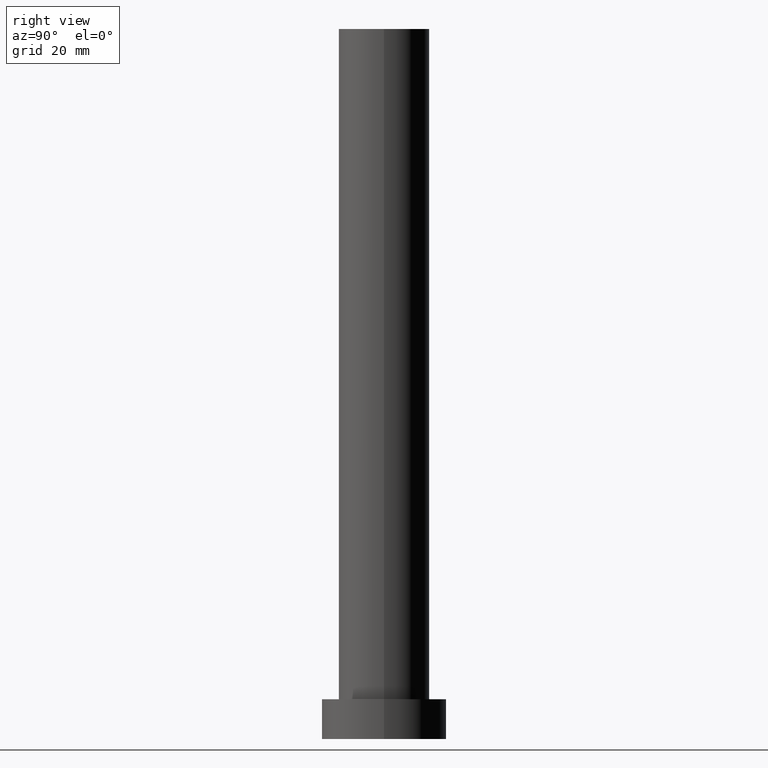
[diagram: clean part render]
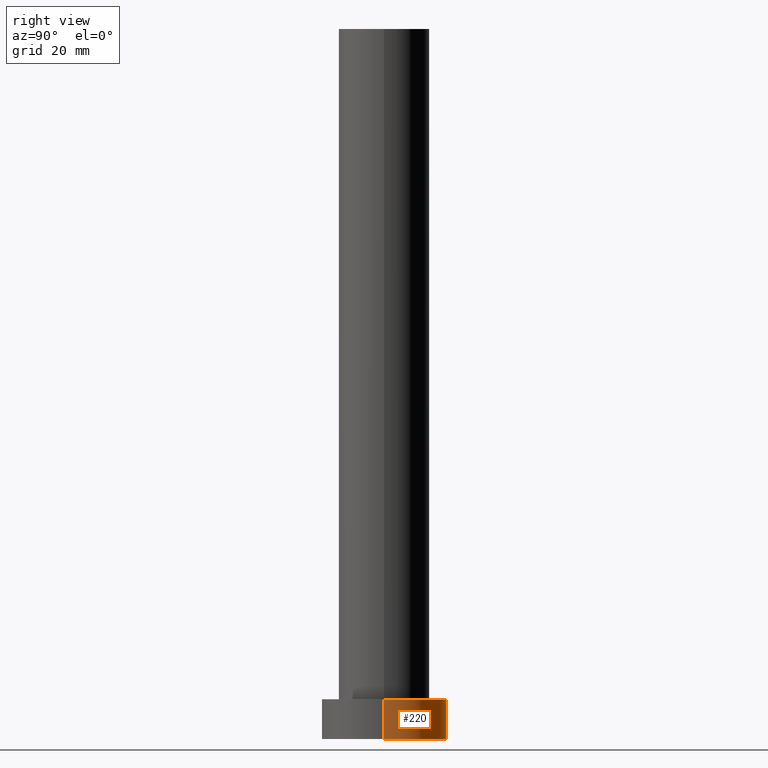
[diagram: same view with one face highlighted and labeled with its STEP entity id]
A machine part, right view. The second image highlights one B-rep face of the part: STEP entity #220.
In plain terms, the highlighted cylindrical surface (partial cylindrical patch) has radius 11 mm, axis along (-0, -0, -1).
Its self-contained STEP definition (entity closure, byte-faithful):
#1 = CARTESIAN_POINT ( 'NONE',  ( 0.000000000000000000, 0.000000000000000000, 0.000000000000000000 ) ) ;
#2 = VERTEX_POINT ( 'NONE', #116 ) ;
#4 = EDGE_CURVE ( 'NONE', #165, #127, #247, .T. ) ;
#7 = DIRECTION ( 'NONE',  ( -0.000000000000000000, -0.000000000000000000, -1.000000000000000000 ) ) ;
#13 = DIRECTION ( 'NONE',  ( 0.000000000000000000, 0.000000000000000000, 1.000000000000000000 ) ) ;
#24 = EDGE_CURVE ( 'NONE', #165, #2, #95, .T. ) ;
#41 = AXIS2_PLACEMENT_3D ( 'NONE', #71, #68, #134 ) ;
#42 = CARTESIAN_POINT ( 'NONE',  ( 11.00000000000000000, 1.347111479062088405E-15, 7.000000000000000000 ) ) ;
#46 = ORIENTED_EDGE ( 'NONE', *, *, #4, .T. ) ;
#48 = VECTOR ( 'NONE', #7, 1000.000000000000000 ) ;
#52 = DIRECTION ( 'NONE',  ( 1.000000000000000000, 0.000000000000000000, 0.000000000000000000 ) ) ;
#60 = DIRECTION ( 'NONE',  ( 0.000000000000000000, 0.000000000000000000, 1.000000000000000000 ) ) ;
#68 = DIRECTION ( 'NONE',  ( -0.000000000000000000, -0.000000000000000000, -1.000000000000000000 ) ) ;
#71 = CARTESIAN_POINT ( 'NONE',  ( 0.000000000000000000, 0.000000000000000000, 7.000000000000000000 ) ) ;
#73 = VECTOR ( 'NONE', #117, 1000.000000000000000 ) ;
#83 = EDGE_CURVE ( 'NONE', #127, #192, #156, .T. ) ;
#92 = CYLINDRICAL_SURFACE ( 'NONE', #41, 11.00000000000000000 ) ;
#95 = CIRCLE ( 'NONE', #168, 11.00000000000000000 ) ;
#101 = CARTESIAN_POINT ( 'NONE',  ( 0.000000000000000000, 0.000000000000000000, 7.000000000000000000 ) ) ;
#114 = LINE ( 'NONE', #187, #48 ) ;
#116 = CARTESIAN_POINT ( 'NONE',  ( -11.00000000000000000, 0.000000000000000000, 7.000000000000000000 ) ) ;
#117 = DIRECTION ( 'NONE',  ( -0.000000000000000000, -0.000000000000000000, -1.000000000000000000 ) ) ;
#127 = VERTEX_POINT ( 'NONE', #244 ) ;
#134 = DIRECTION ( 'NONE',  ( -1.000000000000000000, 0.000000000000000000, 0.000000000000000000 ) ) ;
#141 = EDGE_CURVE ( 'NONE', #2, #192, #114, .T. ) ;
#144 = DIRECTION ( 'NONE',  ( 1.000000000000000000, 0.000000000000000000, 0.000000000000000000 ) ) ;
#156 = CIRCLE ( 'NONE', #194, 11.00000000000000000 ) ;
#165 = VERTEX_POINT ( 'NONE', #199 ) ;
#168 = AXIS2_PLACEMENT_3D ( 'NONE', #101, #60, #144 ) ;
#169 = ORIENTED_EDGE ( 'NONE', *, *, #141, .F. ) ;
#181 = CARTESIAN_POINT ( 'NONE',  ( -11.00000000000000000, 0.000000000000000000, 0.000000000000000000 ) ) ;
#187 = CARTESIAN_POINT ( 'NONE',  ( -11.00000000000000000, 0.000000000000000000, 7.000000000000000000 ) ) ;
#192 = VERTEX_POINT ( 'NONE', #181 ) ;
#194 = AXIS2_PLACEMENT_3D ( 'NONE', #1, #13, #52 ) ;
#196 = ORIENTED_EDGE ( 'NONE', *, *, #24, .F. ) ;
#199 = CARTESIAN_POINT ( 'NONE',  ( 11.00000000000000000, 1.347111479062088405E-15, 7.000000000000000000 ) ) ;
#204 = FACE_OUTER_BOUND ( 'NONE', #213, .T. ) ;
#213 = EDGE_LOOP ( 'NONE', ( #196, #46, #250, #169 ) ) ;
#220 = ADVANCED_FACE ( 'NONE', ( #204 ), #92, .T. ) ;
#244 = CARTESIAN_POINT ( 'NONE',  ( 11.00000000000000000, 1.347111479062088405E-15, 0.000000000000000000 ) ) ;
#247 = LINE ( 'NONE', #42, #73 ) ;
#250 = ORIENTED_EDGE ( 'NONE', *, *, #83, .T. ) ;